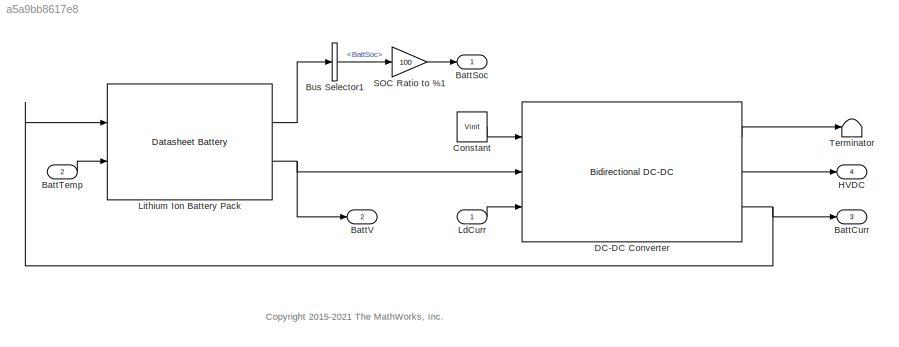
MODEL slx_a5a9bb8617e8
KIND model
CONFIG AbsTol = auto
CONFIG EnableMultiTasking = on
CONFIG MaxStep = auto
CONFIG MinStep = auto
CONFIG RelTol = 1e-3
CONFIG SampleTimeConstraint = Unconstrained
CONFIG SolverName = VariableStepAuto
CONFIG StartTime = 0.0
CONFIG StopTime = inf
WORKSPACE source: mxarray member
WORKSPACE BattCapInit: Simulink.Parameter (value not decoded)
WORKSPACE BattChargeMax: Simulink.Parameter (value not decoded)
WORKSPACE BattTempBp: Simulink.Parameter (value not decoded)
WORKSPACE CapLUTBp: Simulink.Parameter (value not decoded)
WORKSPACE CapSOCBp: Simulink.Parameter (value not decoded)
WORKSPACE Em: Simulink.Parameter (value not decoded)
WORKSPACE Np: Simulink.Parameter (value not decoded)
WORKSPACE Ns: Simulink.Parameter (value not decoded)
WORKSPACE Plimit: Simulink.Parameter (value not decoded)
WORKSPACE RInt: Simulink.Parameter (value not decoded)
WORKSPACE Tc: Simulink.Parameter (value not decoded)
WORKSPACE Vinit: Simulink.Parameter (value not decoded)
WORKSPACE eff: Simulink.Parameter (value not decoded)
BLOCK [Outport] BattCurr
  Port = 3
  VectorParamsAs1DForOutWhenUnconnected = off
BLOCK [Outport] BattSoc
  VectorParamsAs1DForOutWhenUnconnected = off
BLOCK [Inport] BattTemp
  Port = 2
BLOCK [Outport] BattV
  Port = 2
  VectorParamsAs1DForOutWhenUnconnected = off
BLOCK [BusSelector] Bus Selector1
  OutputSignals = BattSoc
  Ports = [1, 1]
BLOCK [Constant] Constant
  Value = Vinit
BLOCK [Reference] DC-DC Converter  REF=autolibdcdc/Bidirectional DC-DC
  Ports = [3, 3]
  SourceBlock = autolibdcdc/Bidirectional DC-DC
  SourceProductBaseCode = PW
  SourceType = DcToDcConverter
BLOCK [Outport] HVDC
  Port = 4
  VectorParamsAs1DForOutWhenUnconnected = off
BLOCK [Inport] LdCurr
BLOCK [Reference] Lithium Ion Battery Pack  REF=autolibdatasheetbattery/Datasheet Battery
  Ports = [2, 2]
  SourceBlock = autolibdatasheetbattery/Datasheet Battery
  SourceProductBaseCode = PW
  SourceType = Datasheet Battery
BLOCK [Gain] SOC Ratio to %1
  Gain = 100
BLOCK [Terminator] Terminator
ANNOTATION (root): <copyright redacted>
LINE BattTemp:1 -> Lithium Ion Battery Pack:2
LINE Bus Selector1:1 -> SOC Ratio to %1:1
LINE Constant:1 -> DC-DC Converter:1
LINE DC-DC Converter:1 -> Terminator:1
LINE DC-DC Converter:2 -> HVDC:1
NET DC-DC Converter:3 -> BattCurr:1, Lithium Ion Battery Pack:1
LINE LdCurr:1 -> DC-DC Converter:3
LINE Lithium Ion Battery Pack:1 -> Bus Selector1:1
NET Lithium Ion Battery Pack:2 -> BattV:1, DC-DC Converter:2
LINE SOC Ratio to %1:1 -> BattSoc:1
note: NET lines group one-source signal fan-out (src -> all destinations, sorted); 1:1 wires keep LINE
